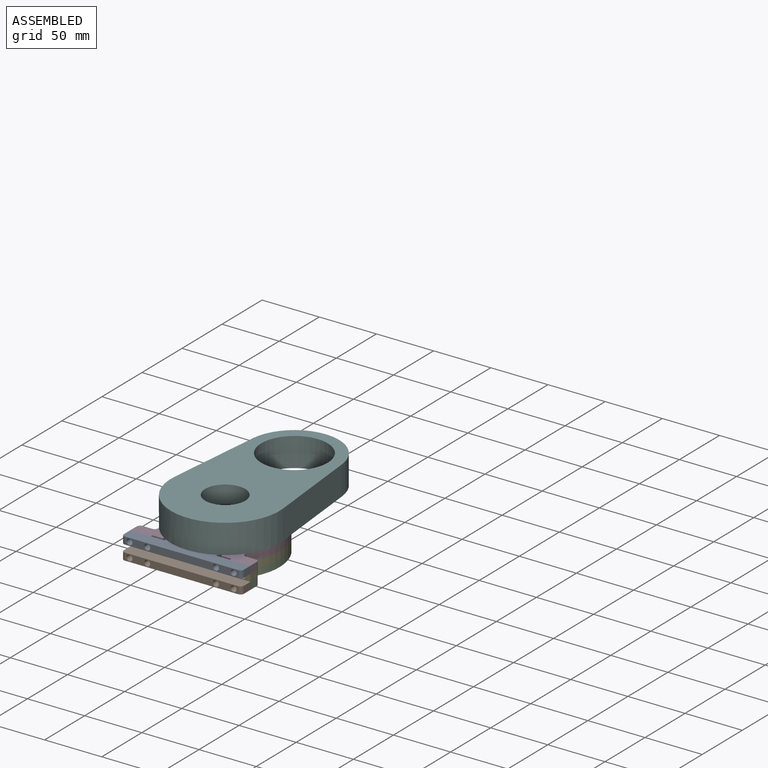
[diagram: assembled view]
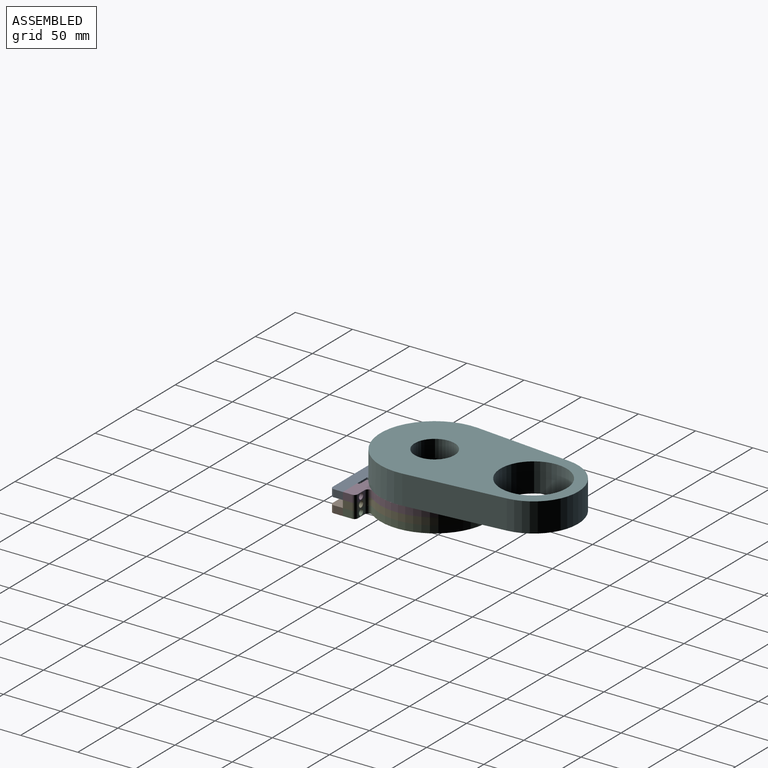
[diagram: assembled view, second angle]
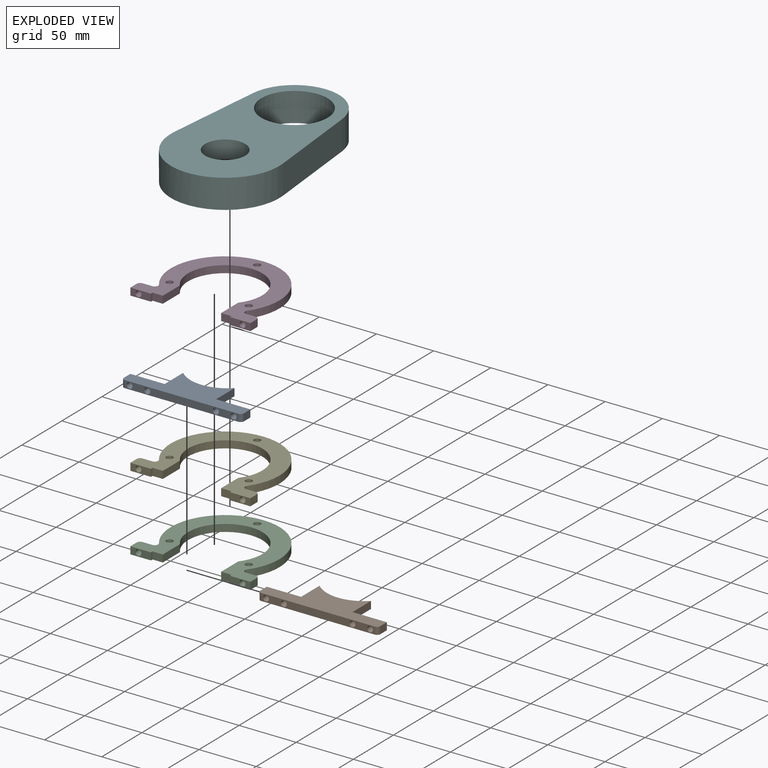
[diagram: exploded view]
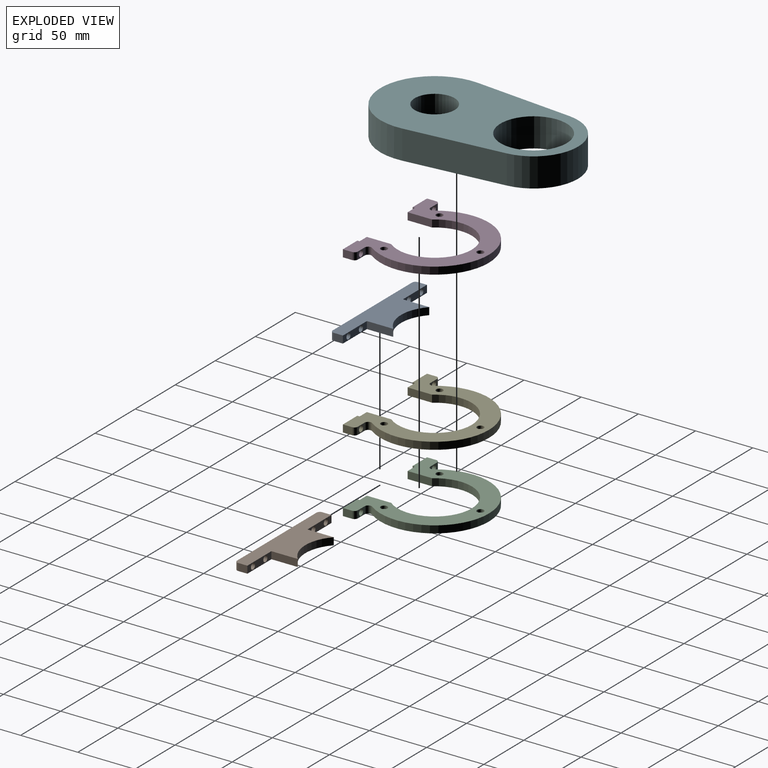
[diagram: exploded view, second angle]
ASSEMBLY  parts=6 mates=4
PART A: 16 faces, bbox 105x34x6.4 mm
  f0: cylinder r=32.5mm len=45mm, axis (0,0,-1), area 315.6mm2, adj f1,f2,f6,f9
  f1: plane 105x34.05mm, normal (0,0,1), area 1908.3mm2, adj f0,f3,f4,f5,f6,f7,f8,f9
  f2: plane 105x34.05mm, normal (0,0,-1), area 1908.3mm2, adj f0,f3,f4,f5,f6,f7,f8,f9
  f3: plane 8x6.35mm, normal (-1,0,0), area 50.8mm2, adj f1,f2,f8,f10
  f4: plane 99x6.35mm, normal (0,-1,0), area 546.9mm2, adj f1,f2,f10,f11,f12,f13,f14,f15
  f5: plane 8x6.35mm, normal (1,0,0), area 50.8mm2, adj f1,f2,f7,f11
  f6: plane 23.05x6.35mm, normal (1,0,0), area 146.4mm2, adj f0,f1,f2,f7
  f7: plane 30x6.35mm, normal (0,1,0), area 149.6mm2, adj f1,f2,f5,f6,f13,f15
  f8: plane 30x6.35mm, normal (0,1,0), area 149.6mm2, adj f1,f2,f3,f9,f12,f14
  f9: plane 23.05x6.35mm, normal (-1,0,0), area 146.4mm2, adj f0,f1,f2,f8
  f10: cylinder r=3mm len=6.35mm, axis (0,0,-1), area 29.9mm2, adj f1,f2,f3,f4
  f11: cylinder r=3mm len=6.35mm, axis (0,0,1), area 29.9mm2, adj f1,f2,f4,f5
  f12: cylinder r=2.55mm len=11mm, axis (0,-1,0), area 176.2mm2, adj f4,f8
  f13: cylinder r=2.55mm len=11mm, axis (0,-1,0), area 176.2mm2, adj f4,f7
  f14: cylinder r=2.55mm len=11mm, axis (0,-1,0), area 176.2mm2, adj f4,f8
  f15: cylinder r=2.55mm len=11mm, axis (0,-1,0), area 176.2mm2, adj f4,f7
PART B: same geometry as A
PART C: 28 faces, bbox 105x91x6.4 mm
  f0: plane 8.51x6.35mm, normal (0,1,0), area 33.6mm2, adj f3,f4,f17,f19,f21
  f1: cylinder r=47.5mm len=95mm, axis (0,0,-1), area 1323.9mm2, adj f3,f4,f16,f17
  f2: plane 8.51x6.35mm, normal (0,1,0), area 33.6mm2, adj f3,f4,f16,f18,f20
  f3: plane 105x91mm, normal (0,0,1), area 3349.9mm2, adj f0,f1,f2,f5,f6,f7,f8,f9
  f4: plane 105x91mm, normal (0,0,-1), area 3431.9mm2, adj f0,f1,f2,f5,f6,f7,f8,f9
  f5: plane 8x6.35mm, normal (1,0,0), area 50.8mm2, adj f3,f4,f10,f19
  f6: plane 8x6.35mm, normal (-1,0,0), area 50.8mm2, adj f3,f4,f15,f18
  f7: cylinder r=32.5mm len=65mm, axis (0,0,-1), area 924.4mm2, adj f3,f4,f11,f14
  f8: plane 9x6.35mm, normal (0,-1,0), area 57.2mm2, adj f3,f4,f9,f11
  f9: plane 6.35x2mm, normal (-1,0,0), area 12.7mm2, adj f3,f4,f8,f10
  f10: plane 18x6.35mm, normal (0,-1,0), area 93.9mm2, adj f3,f4,f5,f9,f21
  f11: plane 21.35x6.35mm, normal (-1,0,0), area 135.6mm2, adj f3,f4,f7,f8
  f12: plane 6.35x2mm, normal (1,0,0), area 12.7mm2, adj f3,f4,f13,f15
  f13: plane 9x6.35mm, normal (0,-1,0), area 57.2mm2, adj f3,f4,f12,f14
  f14: plane 21.35x6.35mm, normal (1,0,0), area 135.6mm2, adj f3,f4,f7,f13
  f15: plane 18x6.35mm, normal (0,-1,0), area 93.9mm2, adj f3,f4,f6,f12,f20
  f16: cylinder r=3mm len=6.35mm, axis (0,0,-1), area 41.8mm2, adj f1,f2,f3,f4
  f17: cylinder r=3mm len=6.35mm, axis (0,0,-1), area 41.8mm2, adj f0,f1,f3,f4
  f18: cylinder r=3mm len=6.35mm, axis (0,0,1), area 29.9mm2, adj f2,f3,f4,f6
  f19: cylinder r=3mm len=6.35mm, axis (0,0,-1), area 29.9mm2, adj f0,f3,f4,f5
  f20: cylinder r=2.55mm len=11mm, axis (0,-1,0), area 176.2mm2, adj f2,f15
  f21: cylinder r=2.55mm len=11mm, axis (0,-1,0), area 176.2mm2, adj f0,f10
  f22: cylinder r=2.95mm len=5.9mm, axis (0,0,1), area 48.2mm2, adj f3,f23
  f23: plane 5.9x5.9mm, normal (0,0,1), area 27.3mm2, adj f22
  f24: cylinder r=2.95mm len=5.9mm, axis (0,0,1), area 48.2mm2, adj f3,f25
  f25: plane 5.9x5.9mm, normal (0,0,1), area 27.3mm2, adj f24
  f26: cylinder r=2.95mm len=5.9mm, axis (0,0,1), area 48.2mm2, adj f3,f27
  f27: plane 5.9x5.9mm, normal (0,0,1), area 27.3mm2, adj f26
PART D: same geometry as C
PART E: same geometry as C
PART F: 24 faces, bbox 95.3x173.3x26.7 mm
  f0: plane 173.35x95.11mm, normal (0,0,-1), area 6394.6mm2, adj f1,f2,f3,f4,f5,f8,f9,f10
  f1: cylinder r=39mm len=77.62mm, axis (0,0,-1), area 2917.1mm2, adj f0,f2,f4,f7
  f2: plane 85.66x25.4mm, normal (-1,0.1,0), area 1593.5mm2, adj f0,f1,f3,f7,f12,f19
  f3: cylinder r=47.5mm len=95mm, axis (0,0,-1), area 3822.3mm2, adj f0,f2,f4,f7,f12,f21
  f4: plane 85.66x25.4mm, normal (1,0.1,0), area 2186.5mm2, adj f0,f1,f3,f7
  f5: cylinder r=29mm len=58mm, axis (0,0,-1), area 4628.2mm2, adj f0,f7
  f6: cylinder r=17.5mm len=35mm, axis (0,0,-1), area 1693.3mm2, adj f7,f23
  f7: plane 173x95mm, normal (0,0,1), area 9847.5mm2, adj f1,f2,f3,f4,f5,f6
  f8: plane 20x9.33mm, normal (-0.57,-0.82,0), area 227.7mm2, adj f0,f12,f19,f20
  f9: plane 20x2.01mm, normal (0,1,0), area 40.3mm2, adj f0,f12,f21,f22
  f10: cylinder r=35.5mm len=71mm, axis (0,0,-1), area 3851.6mm2, adj f0,f12,f20,f22
  f11: cylinder r=21.5mm len=43mm, axis (0,0,-1), area 1350.9mm2, adj f12,f23
  f12: plane 83.35x71.35mm, normal (0,0,-1), area 2880.3mm2, adj f2,f3,f8,f9,f10,f11,f19,f20
  f13: cylinder r=2.95mm len=5.9mm, axis (0,0,-1), area 48.2mm2, adj f0,f14
  f14: plane 5.9x5.9mm, normal (0,0,-1), area 27.3mm2, adj f13
  f15: cylinder r=2.95mm len=5.9mm, axis (0,0,-1), area 48.2mm2, adj f0,f16
  f16: plane 5.9x5.9mm, normal (0,0,-1), area 27.3mm2, adj f15
  f17: cylinder r=2.95mm len=5.9mm, axis (0,0,-1), area 48.2mm2, adj f0,f18
  f18: plane 5.9x5.9mm, normal (0,0,-1), area 27.3mm2, adj f17
  f19: bspline ~22x4.59mm, area 106.6mm2, adj f0,f2,f8,f12
  f20: bspline ~22x6.58mm, area 148.3mm2, adj f0,f8,f10,f12
  f21: bspline ~22x5.59mm, area 177.1mm2, adj f0,f3,f9,f12
  f22: bspline ~22x4.96mm, area 148.3mm2, adj f0,f9,f10,f12
  f23: plane 43x43mm, normal (0,0,-1), area 490.1mm2, adj f6,f11
PLACE A t=(0,0,6.35)mm
PLACE B t=(0,0,-6.35)mm
PLACE C t=(0,-3,-6.35)mm
PLACE D t=(0,-3,6.35)mm
PLACE E t=(0,-3,0)mm
PLACE F t=(0,-3,9.53)mm
MATE fastened F.f17 <-> D.f26  axis (0,0,-1) through (0,37,9.53)mm
MATE fastened D.f3 <-> A.f1  axis (0,0,1) through (52.5,-46.5,9.53)mm
MATE fastened D.f5 <-> E.f5  axis (1,0,0) through (52.5,-46.5,3.18)mm
MATE fastened C.f3 <-> E.f4  axis (0,0,1) through (52.5,-46.5,-3.18)mm
